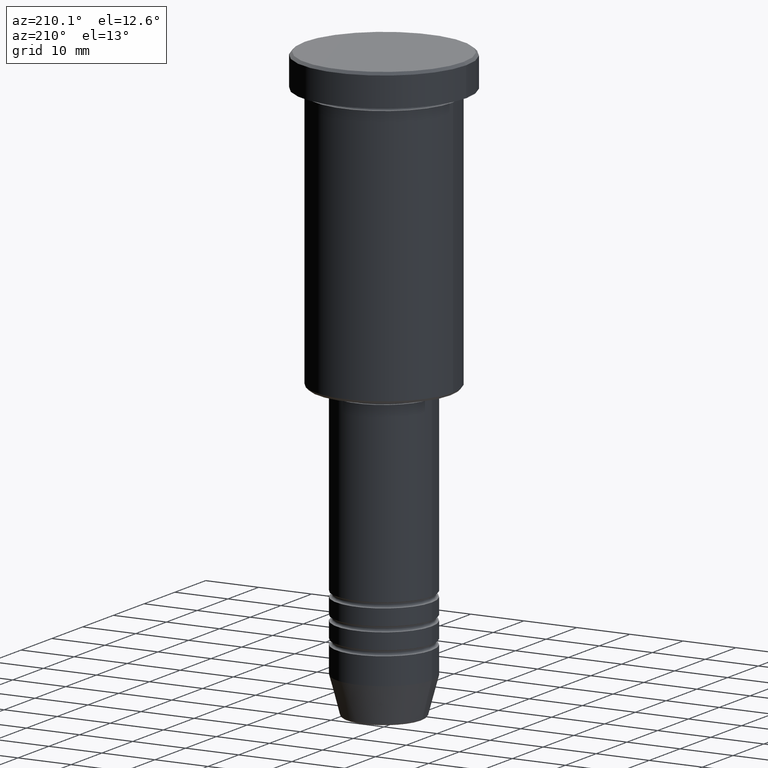
[diagram: clean part render]
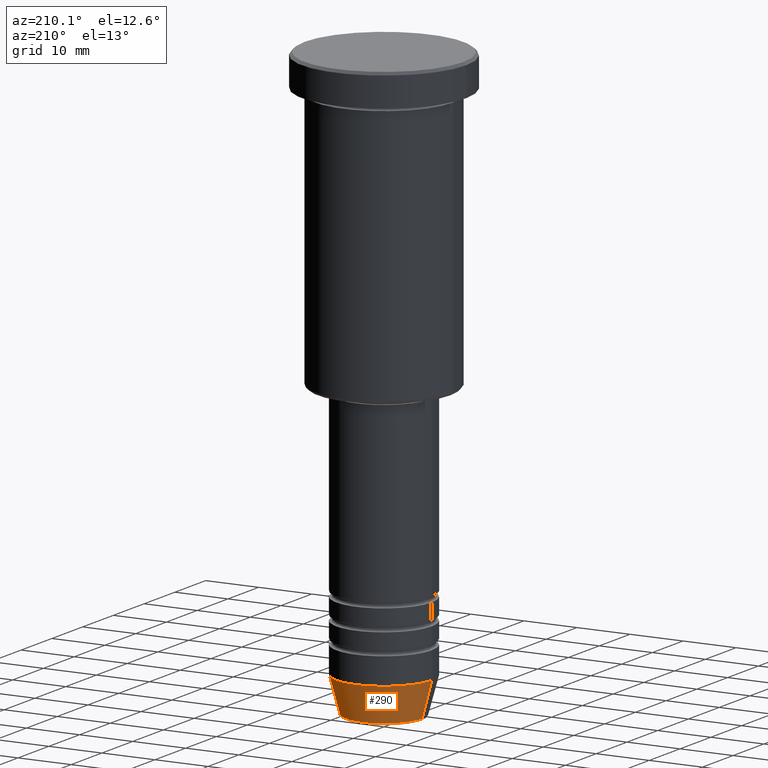
[diagram: same view with one face highlighted and labeled with its STEP entity id]
A machine part, auxiliary view. The second image highlights one B-rep face of the part: STEP entity #290.
In plain terms, the highlighted conical surface has half-angle 15 deg.
Its self-contained STEP definition (entity closure, byte-faithful):
#26 = EDGE_CURVE ( 'NONE', #309, #618, #170, .T. ) ;
#94 = CARTESIAN_POINT ( 'NONE',  ( 0.000000000000000000, 0.000000000000000000, -104.0000000000000142 ) ) ;
#106 = VERTEX_POINT ( 'NONE', #265 ) ;
#119 = EDGE_CURVE ( 'NONE', #962, #106, #152, .T. ) ;
#123 = DIRECTION ( 'NONE',  ( 1.000000000000000000, 0.000000000000000000, 0.000000000000000000 ) ) ;
#147 = ORIENTED_EDGE ( 'NONE', *, *, #119, .F. ) ;
#152 = CIRCLE ( 'NONE', #302, 9.000000000000000000 ) ;
#170 = CIRCLE ( 'NONE', #829, 7.223655072137188604 ) ;
#227 = FACE_OUTER_BOUND ( 'NONE', #1163, .T. ) ;
#265 = CARTESIAN_POINT ( 'NONE',  ( -9.000000000000000000, 1.102182119232617714E-15, -104.0000000000000142 ) ) ;
#290 = ADVANCED_FACE ( 'NONE', ( #227 ), #551, .T. ) ;
#302 = AXIS2_PLACEMENT_3D ( 'NONE', #94, #740, #992 ) ;
#309 = VERTEX_POINT ( 'NONE', #764 ) ;
#346 = ORIENTED_EDGE ( 'NONE', *, *, #736, .F. ) ;
#348 = CARTESIAN_POINT ( 'NONE',  ( 9.000000000000000000, 0.000000000000000000, -104.0000000000000142 ) ) ;
#406 = DIRECTION ( 'NONE',  ( -0.000000000000000000, -0.000000000000000000, 1.000000000000000000 ) ) ;
#410 = CARTESIAN_POINT ( 'NONE',  ( 9.000000000000000000, 0.000000000000000000, -104.0000000000000142 ) ) ;
#429 = VECTOR ( 'NONE', #769, 1000.000000000000000 ) ;
#437 = LINE ( 'NONE', #1165, #997 ) ;
#479 = LINE ( 'NONE', #410, #429 ) ;
#515 = CARTESIAN_POINT ( 'NONE',  ( 0.000000000000000000, 0.000000000000000000, -110.6294095225512848 ) ) ;
#551 = CONICAL_SURFACE ( 'NONE', #1007, 9.000000000000000000, 0.2617993877991500740 ) ;
#618 = VERTEX_POINT ( 'NONE', #1039 ) ;
#701 = DIRECTION ( 'NONE',  ( 1.000000000000000000, 0.000000000000000000, 0.000000000000000000 ) ) ;
#736 = EDGE_CURVE ( 'NONE', #309, #962, #479, .T. ) ;
#740 = DIRECTION ( 'NONE',  ( -0.000000000000000000, -0.000000000000000000, 1.000000000000000000 ) ) ;
#764 = CARTESIAN_POINT ( 'NONE',  ( 7.223655072137188604, 0.000000000000000000, -110.6294095225512848 ) ) ;
#769 = DIRECTION ( 'NONE',  ( 0.2588190451025213501, 0.000000000000000000, 0.9659258262890680902 ) ) ;
#775 = ORIENTED_EDGE ( 'NONE', *, *, #1049, .T. ) ;
#829 = AXIS2_PLACEMENT_3D ( 'NONE', #515, #872, #701 ) ;
#851 = CARTESIAN_POINT ( 'NONE',  ( 0.000000000000000000, 0.000000000000000000, -104.0000000000000142 ) ) ;
#872 = DIRECTION ( 'NONE',  ( -0.000000000000000000, -0.000000000000000000, 1.000000000000000000 ) ) ;
#962 = VERTEX_POINT ( 'NONE', #348 ) ;
#984 = DIRECTION ( 'NONE',  ( -0.2588190451025213501, 3.169619151431772337E-17, 0.9659258262890680902 ) ) ;
#992 = DIRECTION ( 'NONE',  ( 1.000000000000000000, 0.000000000000000000, 0.000000000000000000 ) ) ;
#997 = VECTOR ( 'NONE', #984, 1000.000000000000000 ) ;
#1007 = AXIS2_PLACEMENT_3D ( 'NONE', #851, #406, #123 ) ;
#1039 = CARTESIAN_POINT ( 'NONE',  ( -7.223655072137189492, 9.934123627281765110E-16, -110.6294095225512848 ) ) ;
#1041 = ORIENTED_EDGE ( 'NONE', *, *, #26, .T. ) ;
#1049 = EDGE_CURVE ( 'NONE', #618, #106, #437, .T. ) ;
#1163 = EDGE_LOOP ( 'NONE', ( #1041, #775, #147, #346 ) ) ;
#1165 = CARTESIAN_POINT ( 'NONE',  ( -9.000000000000000000, 1.102182119232617714E-15, -104.0000000000000142 ) ) ;